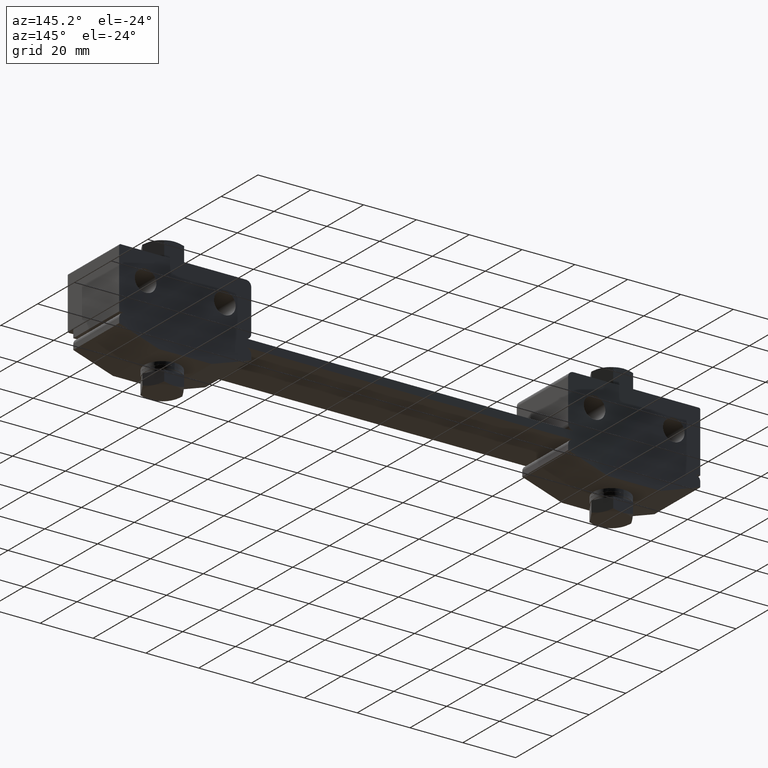
[diagram: clean part render]
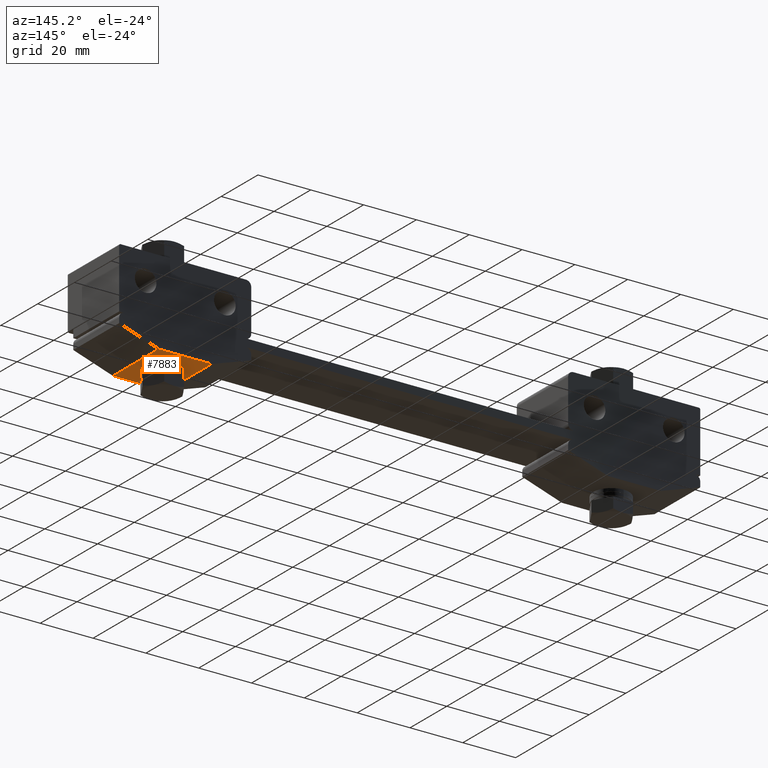
[diagram: same view with one face highlighted and labeled with its STEP entity id]
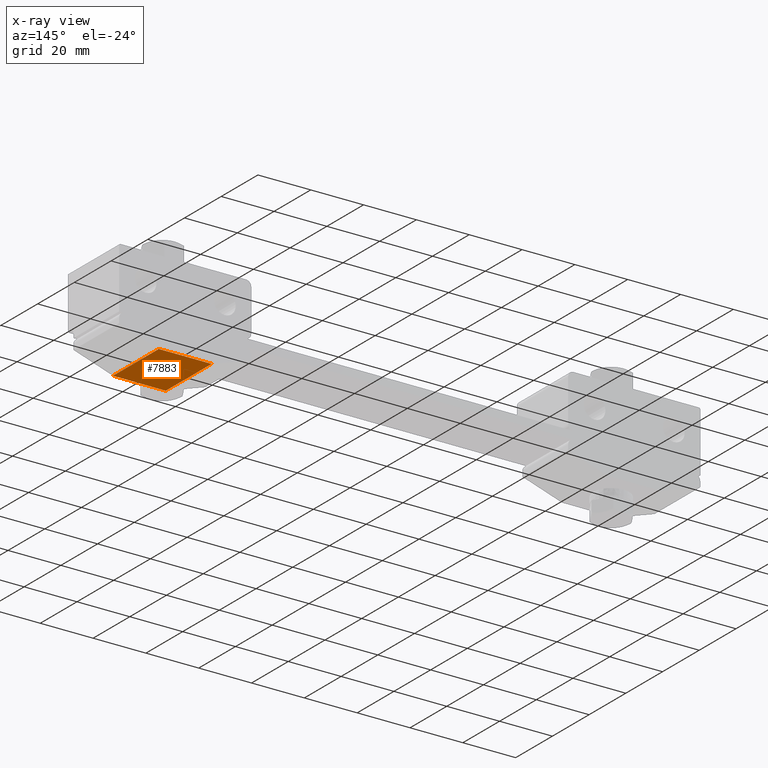
[diagram: x-ray of the same camera — body ghosted, the highlighted face saturated]
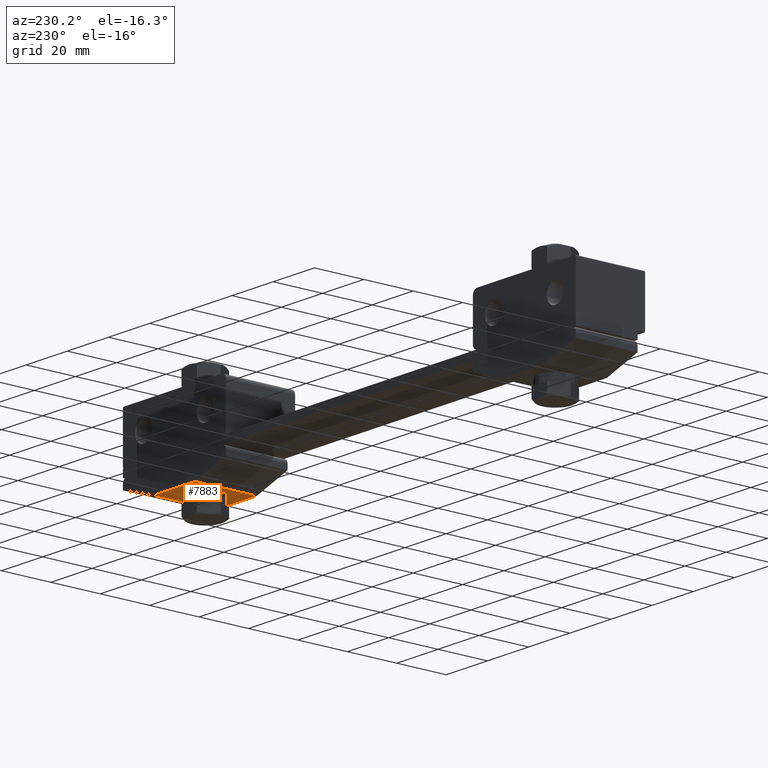
[diagram: same view with one face highlighted and labeled with its STEP entity id]
A machine part, auxiliary view. The second image highlights one B-rep face of the part: STEP entity #7883.
The next image is the same camera in x-ray: the body ghosted, the highlighted face saturated — about 0% of this face is hidden behind the body in this view.
A second angle (auxiliary view) of the same face is appended — the face is thin or edge-on in the first view.
In plain terms, the highlighted planar face has unit normal (0, 0, 1).
Its self-contained STEP definition (entity closure, byte-faithful):
#135 = ORIENTED_EDGE ( 'NONE', *, *, #11817, .T. ) ;
#207 = VECTOR ( 'NONE', #5794, 1000.000000000000000 ) ;
#638 = CARTESIAN_POINT ( 'NONE',  ( 85.00000000000000000, 2.081830801498040100E-014, -9.000000000000000000 ) ) ;
#792 = CARTESIAN_POINT ( 'NONE',  ( 95.00000000000000000, -12.50000000000000000, -9.000000000000000000 ) ) ;
#1695 = CARTESIAN_POINT ( 'NONE',  ( 75.00000000000000000, -12.50000000000000000, -9.000000000000000000 ) ) ;
#2183 = VECTOR ( 'NONE', #17324, 1000.000000000000000 ) ;
#2335 = CARTESIAN_POINT ( 'NONE',  ( 60.00000000000000000, -12.50000000000000000, -9.000000000000000000 ) ) ;
#2661 = VERTEX_POINT ( 'NONE', #15282 ) ;
#2666 = AXIS2_PLACEMENT_3D ( 'NONE', #20088, #15335, #15193 ) ;
#2747 = EDGE_CURVE ( 'NONE', #2661, #16835, #14313, .T. ) ;
#3129 = VECTOR ( 'NONE', #15354, 1000.000000000000000 ) ;
#3137 = FACE_OUTER_BOUND ( 'NONE', #12354, .T. ) ;
#3384 = CARTESIAN_POINT ( 'NONE',  ( 95.00000000000000000, 12.50000000000000000, -9.000000000000000000 ) ) ;
#3880 = LINE ( 'NONE', #15752, #2183 ) ;
#4101 = LINE ( 'NONE', #9023, #207 ) ;
#4282 = VERTEX_POINT ( 'NONE', #3384 ) ;
#4551 = CARTESIAN_POINT ( 'NONE',  ( 75.00000000000000000, 12.50000000000000000, -9.000000000000000000 ) ) ;
#4596 = CIRCLE ( 'NONE', #13936, 4.100000000000006800 ) ;
#4644 = EDGE_CURVE ( 'NONE', #6893, #19588, #16387, .T. ) ;
#5240 = DIRECTION ( 'NONE',  ( 1.000000000000000000, 0.0000000000000000000, 0.0000000000000000000 ) ) ;
#5647 = EDGE_LOOP ( 'NONE', ( #6478, #15620 ) ) ;
#5794 = DIRECTION ( 'NONE',  ( -1.000000000000000000, 0.0000000000000000000, 0.0000000000000000000 ) ) ;
#6043 = FACE_BOUND ( 'NONE', #5647, .T. ) ;
#6343 = ORIENTED_EDGE ( 'NONE', *, *, #15192, .F. ) ;
#6478 = ORIENTED_EDGE ( 'NONE', *, *, #4644, .T. ) ;
#6674 = DIRECTION ( 'NONE',  ( 1.000000000000000000, 0.0000000000000000000, 0.0000000000000000000 ) ) ;
#6893 = VERTEX_POINT ( 'NONE', #18502 ) ;
#7883 = ADVANCED_FACE ( 'NONE', ( #6043, #3137 ), #15896, .F. ) ;
#8367 = CARTESIAN_POINT ( 'NONE',  ( 60.00000000000000000, -12.50000000000000000, -9.000000000000000000 ) ) ;
#8478 = DIRECTION ( 'NONE',  ( 0.0000000000000000000, 0.0000000000000000000, 1.000000000000000000 ) ) ;
#9023 = CARTESIAN_POINT ( 'NONE',  ( 60.00000000000000000, 12.50000000000000000, -9.000000000000000000 ) ) ;
#9748 = DIRECTION ( 'NONE',  ( 0.0000000000000000000, 0.0000000000000000000, 1.000000000000000000 ) ) ;
#10932 = AXIS2_PLACEMENT_3D ( 'NONE', #8367, #9748, #6674 ) ;
#11817 = EDGE_CURVE ( 'NONE', #4282, #18337, #3880, .T. ) ;
#12354 = EDGE_LOOP ( 'NONE', ( #14588, #19008, #6343, #135 ) ) ;
#13936 = AXIS2_PLACEMENT_3D ( 'NONE', #638, #8478, #19352 ) ;
#14050 = EDGE_CURVE ( 'NONE', #2661, #18337, #17552, .T. ) ;
#14313 = LINE ( 'NONE', #1695, #3129 ) ;
#14588 = ORIENTED_EDGE ( 'NONE', *, *, #14050, .F. ) ;
#15192 = EDGE_CURVE ( 'NONE', #4282, #16835, #4101, .T. ) ;
#15193 = DIRECTION ( 'NONE',  ( 1.000000000000000000, 0.0000000000000000000, 0.0000000000000000000 ) ) ;
#15282 = CARTESIAN_POINT ( 'NONE',  ( 75.00000000000000000, -12.50000000000000000, -9.000000000000000000 ) ) ;
#15335 = DIRECTION ( 'NONE',  ( 0.0000000000000000000, 0.0000000000000000000, 1.000000000000000000 ) ) ;
#15354 = DIRECTION ( 'NONE',  ( 0.0000000000000000000, 1.000000000000000000, 0.0000000000000000000 ) ) ;
#15620 = ORIENTED_EDGE ( 'NONE', *, *, #15636, .T. ) ;
#15636 = EDGE_CURVE ( 'NONE', #19588, #6893, #4596, .T. ) ;
#15671 = CARTESIAN_POINT ( 'NONE',  ( 80.90000000000000600, 2.132041320263081600E-014, -9.000000000000000000 ) ) ;
#15752 = CARTESIAN_POINT ( 'NONE',  ( 95.00000000000000000, -12.50000000000000000, -9.000000000000000000 ) ) ;
#15852 = VECTOR ( 'NONE', #5240, 1000.000000000000000 ) ;
#15896 = PLANE ( 'NONE',  #10932 ) ;
#16387 = CIRCLE ( 'NONE', #2666, 4.100000000000006800 ) ;
#16835 = VERTEX_POINT ( 'NONE', #4551 ) ;
#17324 = DIRECTION ( 'NONE',  ( 0.0000000000000000000, -1.000000000000000000, 0.0000000000000000000 ) ) ;
#17552 = LINE ( 'NONE', #2335, #15852 ) ;
#18337 = VERTEX_POINT ( 'NONE', #792 ) ;
#18502 = CARTESIAN_POINT ( 'NONE',  ( 89.10000000000000900, 2.081830801498040100E-014, -9.000000000000000000 ) ) ;
#19008 = ORIENTED_EDGE ( 'NONE', *, *, #2747, .T. ) ;
#19352 = DIRECTION ( 'NONE',  ( 1.000000000000000000, 0.0000000000000000000, 0.0000000000000000000 ) ) ;
#19588 = VERTEX_POINT ( 'NONE', #15671 ) ;
#20088 = CARTESIAN_POINT ( 'NONE',  ( 85.00000000000000000, 2.081830801498040100E-014, -9.000000000000000000 ) ) ;